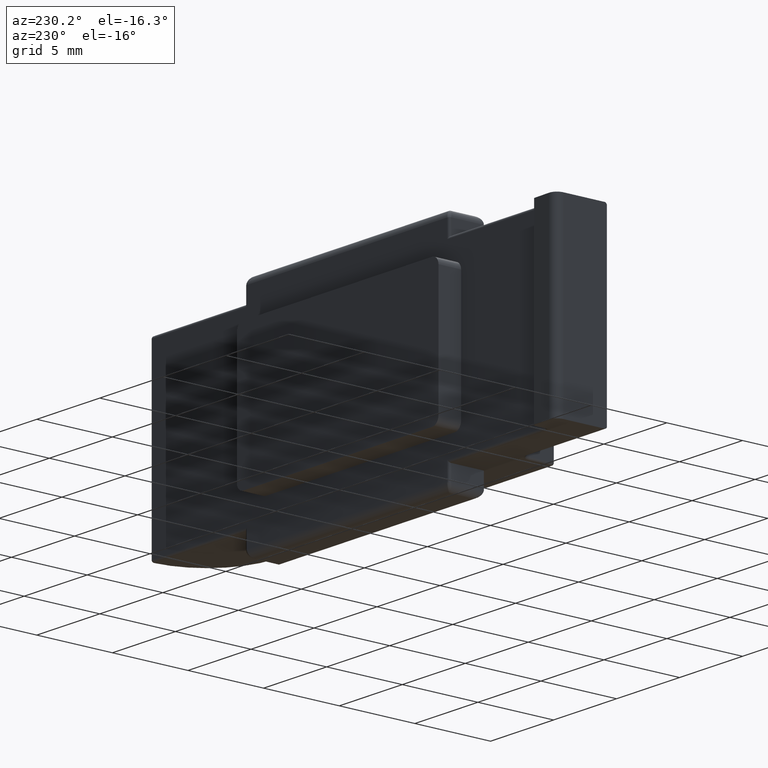
[diagram: clean part render]
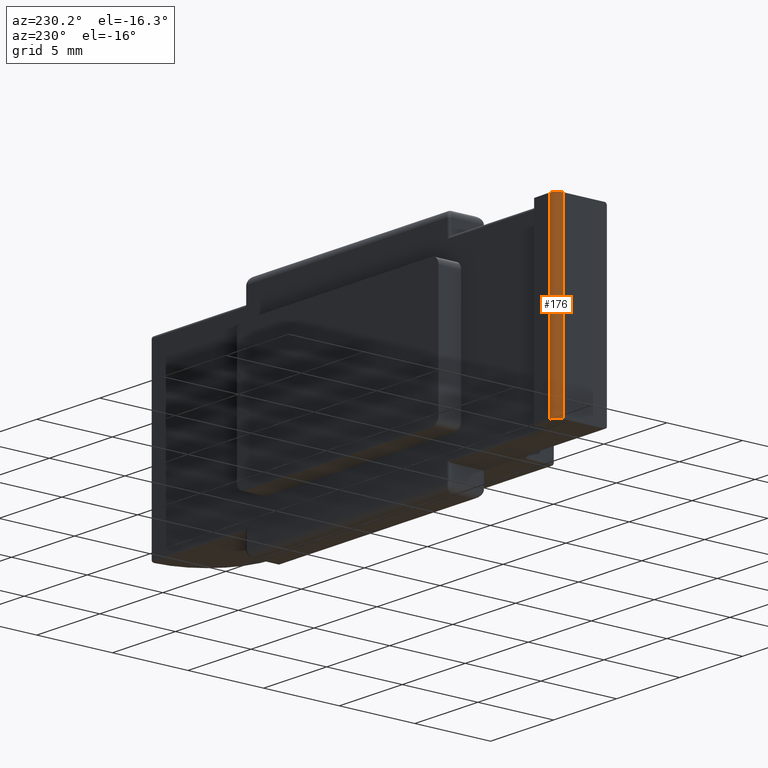
[diagram: same view with one face highlighted and labeled with its STEP entity id]
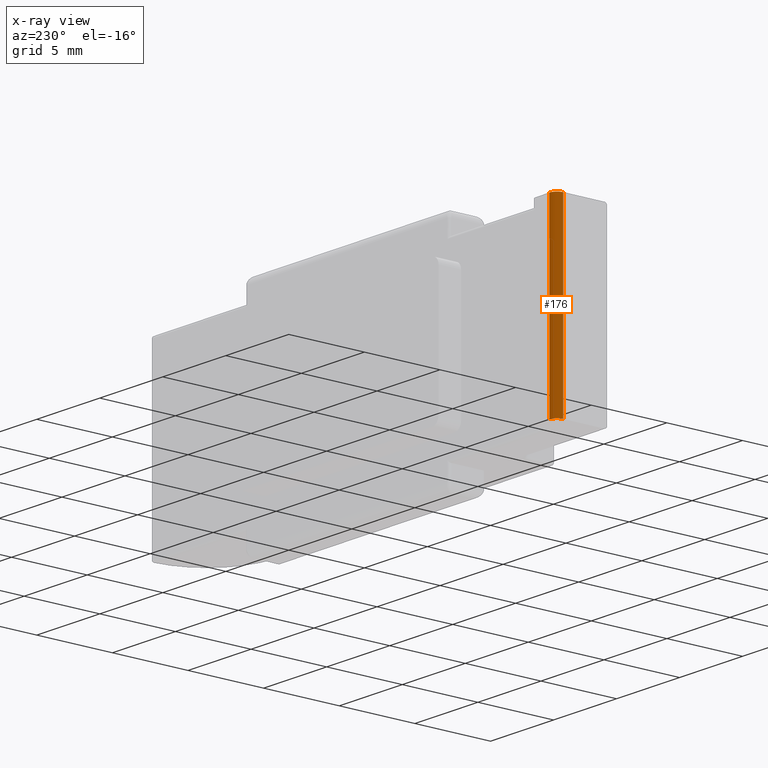
[diagram: x-ray of the same camera — body ghosted, the highlighted face saturated]
A machine part, auxiliary view. The second image highlights one B-rep face of the part: STEP entity #176.
The next image is the same camera in x-ray: the body ghosted, the highlighted face saturated — about 0% of this face is hidden behind the body in this view.
In plain terms, the highlighted cylindrical surface (edge-blend (fillet) strip) has radius 0.5 mm, axis along (0, -0, -1).
Its self-contained STEP definition (entity closure, byte-faithful):
#8 = CARTESIAN_POINT ( 'NONE',  ( -6.760000000000053966, -0.01265622559356444077, 0.000000000000000000 ) ) ;
#176 = ADVANCED_FACE ( 'NONE', ( #1895 ), #1929, .T. ) ;
#179 = CARTESIAN_POINT ( 'NONE',  ( -6.247503904419946963, 0.4871875976104958483, 0.000000000000000000 ) ) ;
#268 = EDGE_CURVE ( 'NONE', #2176, #1265, #861, .T. ) ;
#276 = EDGE_LOOP ( 'NONE', ( #1698, #1036, #1127, #1292 ) ) ;
#436 = CARTESIAN_POINT ( 'NONE',  ( -6.260000000000053966, -0.01265622559356444077, 12.00000000000003197 ) ) ;
#504 = VERTEX_POINT ( 'NONE', #179 ) ;
#753 = DIRECTION ( 'NONE',  ( 0.000000000000000000, -6.162975822039132834E-33, -1.000000000000000000 ) ) ;
#776 = LINE ( 'NONE', #939, #1335 ) ;
#789 = DIRECTION ( 'NONE',  ( -1.000000000000000000, 8.876905287225028110E-16, 0.000000000000000000 ) ) ;
#804 = EDGE_CURVE ( 'NONE', #1265, #1885, #856, .T. ) ;
#856 = LINE ( 'NONE', #2003, #2081 ) ;
#861 = CIRCLE ( 'NONE', #1576, 0.5000000000000022204 ) ;
#866 = EDGE_CURVE ( 'NONE', #1885, #504, #1515, .T. ) ;
#939 = CARTESIAN_POINT ( 'NONE',  ( -6.247503904419946963, 0.4871875976104958483, 12.00000000000003197 ) ) ;
#948 = DIRECTION ( 'NONE',  ( -1.000000000000000000, 0.000000000000000000, 0.000000000000000000 ) ) ;
#1009 = CARTESIAN_POINT ( 'NONE',  ( -6.260000000000053966, -0.01265622559356444077, 0.000000000000000000 ) ) ;
#1036 = ORIENTED_EDGE ( 'NONE', *, *, #2198, .F. ) ;
#1127 = ORIENTED_EDGE ( 'NONE', *, *, #866, .F. ) ;
#1150 = AXIS2_PLACEMENT_3D ( 'NONE', #1774, #753, #948 ) ;
#1165 = DIRECTION ( 'NONE',  ( 0.000000000000000000, -6.162975822039132834E-33, -1.000000000000000000 ) ) ;
#1265 = VERTEX_POINT ( 'NONE', #2143 ) ;
#1292 = ORIENTED_EDGE ( 'NONE', *, *, #804, .F. ) ;
#1335 = VECTOR ( 'NONE', #2101, 1000.000000000000000 ) ;
#1515 = CIRCLE ( 'NONE', #1561, 0.5000000000000022204 ) ;
#1561 = AXIS2_PLACEMENT_3D ( 'NONE', #1009, #1165, #2196 ) ;
#1576 = AXIS2_PLACEMENT_3D ( 'NONE', #436, #2000, #789 ) ;
#1644 = DIRECTION ( 'NONE',  ( 0.000000000000000000, -6.162975822039132834E-33, -1.000000000000000000 ) ) ;
#1698 = ORIENTED_EDGE ( 'NONE', *, *, #268, .F. ) ;
#1774 = CARTESIAN_POINT ( 'NONE',  ( -6.260000000000053966, -0.01265622559356444077, 12.00000000000003197 ) ) ;
#1885 = VERTEX_POINT ( 'NONE', #8 ) ;
#1895 = FACE_OUTER_BOUND ( 'NONE', #276, .T. ) ;
#1929 = CYLINDRICAL_SURFACE ( 'NONE', #1150, 0.5000000000000022204 ) ;
#2000 = DIRECTION ( 'NONE',  ( -0.000000000000000000, 6.162975822039132834E-33, 1.000000000000000000 ) ) ;
#2003 = CARTESIAN_POINT ( 'NONE',  ( -6.760000000000053966, -0.01265622559356444077, 12.00000000000003197 ) ) ;
#2081 = VECTOR ( 'NONE', #1644, 1000.000000000000000 ) ;
#2101 = DIRECTION ( 'NONE',  ( -0.000000000000000000, 6.162975822039132834E-33, 1.000000000000000000 ) ) ;
#2128 = CARTESIAN_POINT ( 'NONE',  ( -6.247503904419946963, 0.4871875976104958483, 12.00000000000003197 ) ) ;
#2143 = CARTESIAN_POINT ( 'NONE',  ( -6.760000000000053966, -0.01265622559356444077, 12.00000000000003197 ) ) ;
#2176 = VERTEX_POINT ( 'NONE', #2128 ) ;
#2196 = DIRECTION ( 'NONE',  ( -1.000000000000000000, 0.000000000000000000, 0.000000000000000000 ) ) ;
#2198 = EDGE_CURVE ( 'NONE', #504, #2176, #776, .T. ) ;